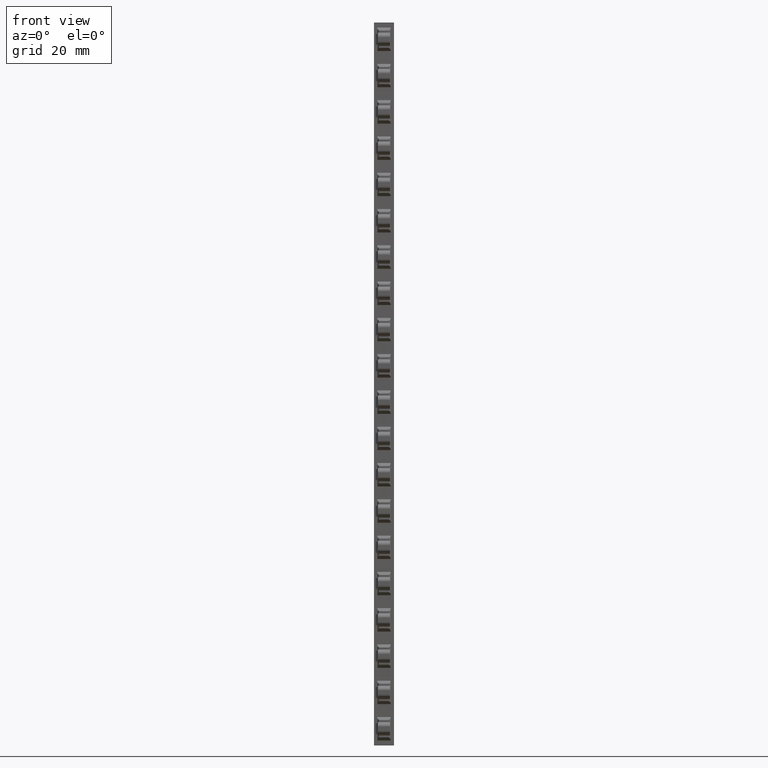
[diagram: clean part render]
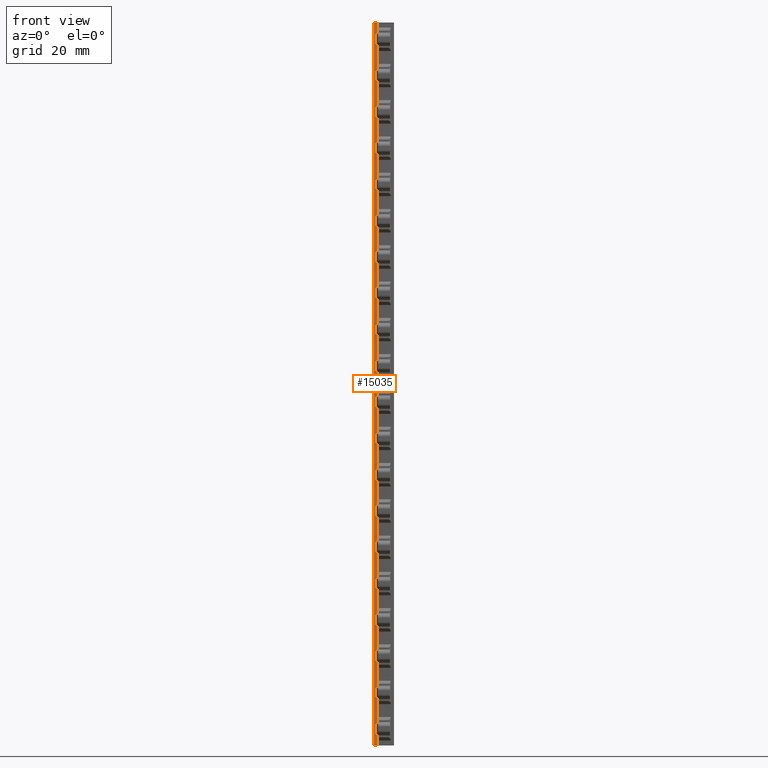
[diagram: same view with one face highlighted and labeled with its STEP entity id]
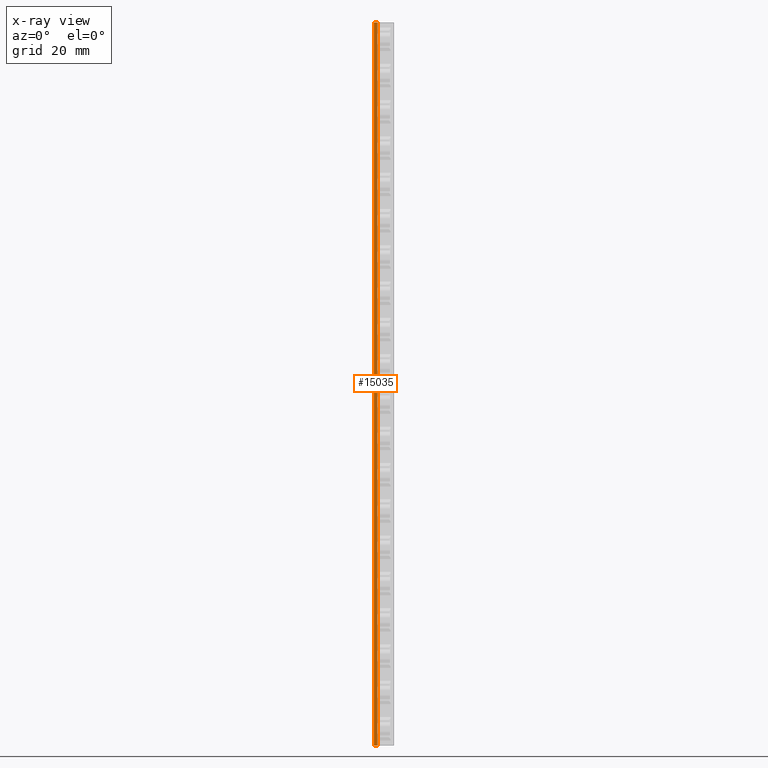
[diagram: x-ray of the same camera — body ghosted, the highlighted face saturated]
A machine part, front view. The second image highlights one B-rep face of the part: STEP entity #15035.
The next image is the same camera in x-ray: the body ghosted, the highlighted face saturated — about 0% of this face is hidden behind the body in this view.
In plain terms, the highlighted planar face has unit normal (-0, -1, 0).
Its self-contained STEP definition (entity closure, byte-faithful):
#17 = ORIENTED_EDGE ( 'NONE', *, *, #16135, .T. ) ;
#1718 = AXIS2_PLACEMENT_3D ( 'NONE', #22682, #22673, #22649 ) ;
#2185 = VECTOR ( 'NONE', #21561, 1000.000000000000000 ) ;
#2189 = VECTOR ( 'NONE', #21617, 1000.000000000000000 ) ;
#2213 = VECTOR ( 'NONE', #21554, 1000.000000000000000 ) ;
#2219 = VECTOR ( 'NONE', #21585, 1000.000000000000000 ) ;
#3251 = CARTESIAN_POINT ( 'NONE',  ( 108.4952529172782200, 259.1101602476019800, 173.0398226793859900 ) ) ;
#3350 = CARTESIAN_POINT ( 'NONE',  ( 109.2452529172784400, 259.1101602476009000, 9.639822679385984500 ) ) ;
#3372 = CARTESIAN_POINT ( 'NONE',  ( 108.4952529172783100, 259.1101602476009000, 9.639822679385984500 ) ) ;
#3419 = CARTESIAN_POINT ( 'NONE',  ( 109.2452529172784200, 259.1101602476019800, 173.0398226793859900 ) ) ;
#9834 = EDGE_LOOP ( 'NONE', ( #14435, #14422, #14438, #17 ) ) ;
#14422 = ORIENTED_EDGE ( 'NONE', *, *, #16138, .T. ) ;
#14435 = ORIENTED_EDGE ( 'NONE', *, *, #16144, .T. ) ;
#14438 = ORIENTED_EDGE ( 'NONE', *, *, #16158, .T. ) ;
#15035 = ADVANCED_FACE ( 'NONE', ( #22667 ), #22652, .T. ) ;
#15385 = VERTEX_POINT ( 'NONE', #3251 ) ;
#15442 = VERTEX_POINT ( 'NONE', #3372 ) ;
#15464 = VERTEX_POINT ( 'NONE', #3350 ) ;
#15484 = VERTEX_POINT ( 'NONE', #3419 ) ;
#16135 = EDGE_CURVE ( 'NONE', #15484, #15385, #21555, .T. ) ;
#16138 = EDGE_CURVE ( 'NONE', #15442, #15464, #21559, .T. ) ;
#16144 = EDGE_CURVE ( 'NONE', #15385, #15442, #21558, .T. ) ;
#16158 = EDGE_CURVE ( 'NONE', #15464, #15484, #21580, .T. ) ;
#21537 = CARTESIAN_POINT ( 'NONE',  ( 108.4952529172782200, 259.1101602476019300, 193.7370111674605100 ) ) ;
#21554 = DIRECTION ( 'NONE',  ( 1.000000000000000000, -1.448504331889322000E-042, 2.816989510675985000E-070 ) ) ;
#21555 = LINE ( 'NONE', #21576, #2185 ) ;
#21558 = LINE ( 'NONE', #21537, #2189 ) ;
#21559 = LINE ( 'NONE', #21570, #2213 ) ;
#21561 = DIRECTION ( 'NONE',  ( -1.000000000000000000, 1.448504331889322000E-042, -2.816989510675985000E-070 ) ) ;
#21570 = CARTESIAN_POINT ( 'NONE',  ( 108.7452529172780700, 259.1101602476009000, 9.639822679386011100 ) ) ;
#21576 = CARTESIAN_POINT ( 'NONE',  ( 108.7452529172780700, 259.1101602476019800, 173.0398226793859900 ) ) ;
#21580 = LINE ( 'NONE', #21586, #2219 ) ;
#21585 = DIRECTION ( 'NONE',  ( -7.193572994224081300E-015, -1.901732946337204600E-028, 1.000000000000000000 ) ) ;
#21586 = CARTESIAN_POINT ( 'NONE',  ( 109.2452529172779700, 259.1101602476019300, 214.6398226793859900 ) ) ;
#21617 = DIRECTION ( 'NONE',  ( 0.0000000000000000000, -1.944757394685670000E-028, -1.000000000000000000 ) ) ;
#22649 = DIRECTION ( 'NONE',  ( 0.0000000000000000000, -1.944757394685670000E-028, -1.000000000000000000 ) ) ;
#22652 = PLANE ( 'NONE',  #1718 ) ;
#22667 = FACE_OUTER_BOUND ( 'NONE', #9834, .T. ) ;
#22673 = DIRECTION ( 'NONE',  ( -1.448504331889322000E-042, -1.000000000000000000, 1.944757394685670000E-028 ) ) ;
#22682 = CARTESIAN_POINT ( 'NONE',  ( 108.7452529172780700, 259.1101602476019300, 193.7370111674605100 ) ) ;